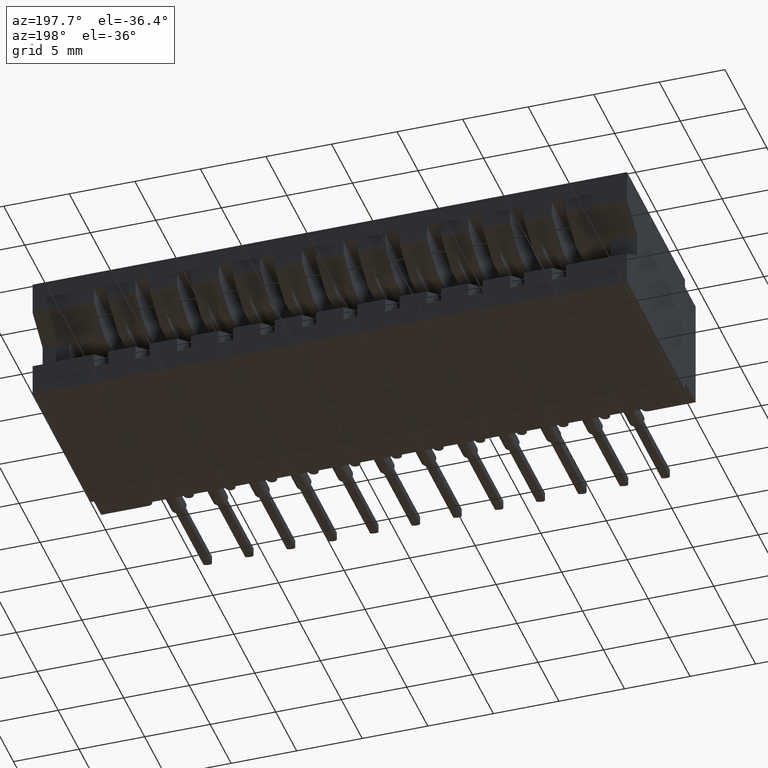
[diagram: clean part render]
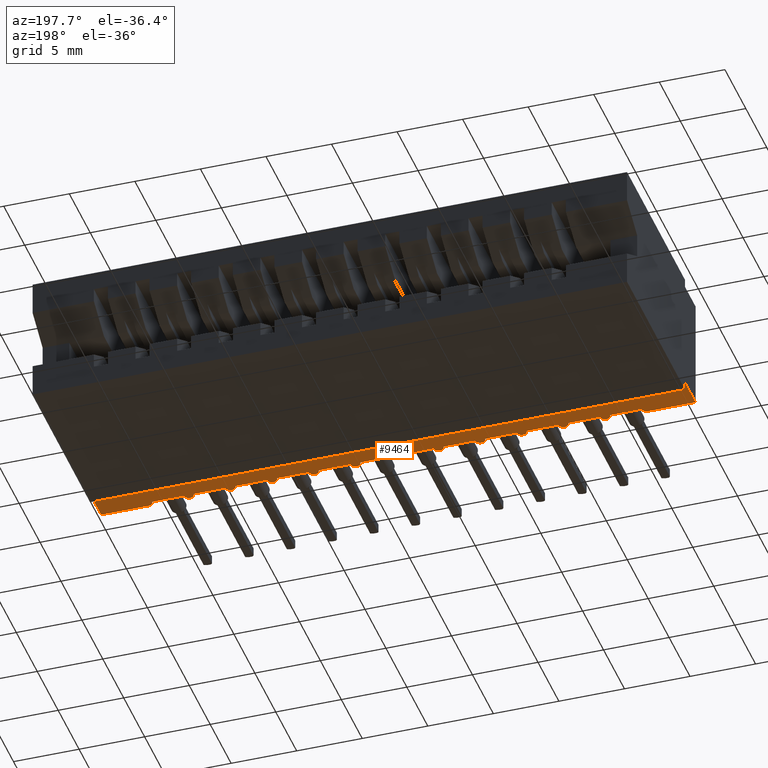
[diagram: same view with one face highlighted and labeled with its STEP entity id]
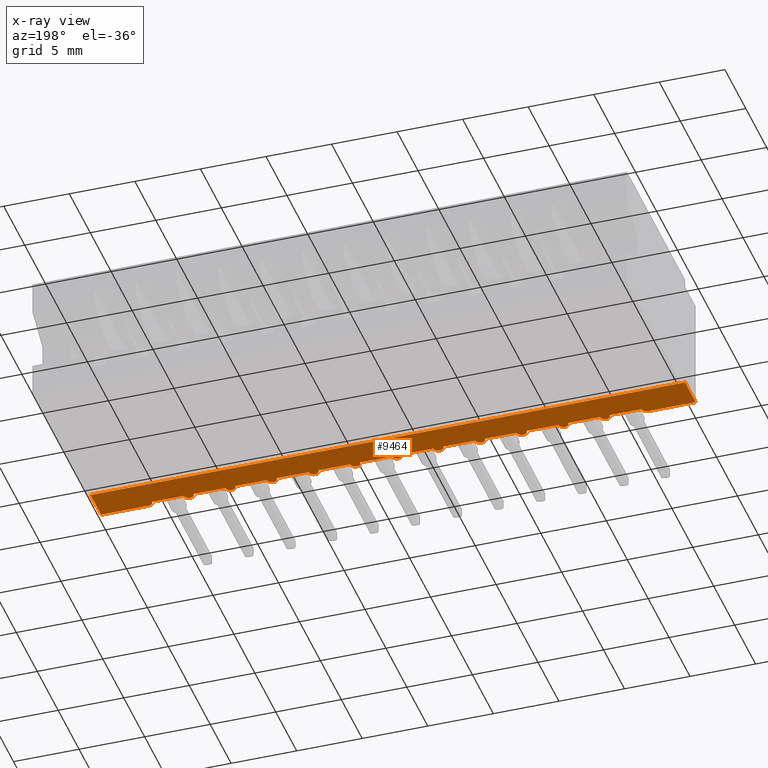
[diagram: x-ray of the same camera — body ghosted, the highlighted face saturated]
A machine part, auxiliary view. The second image highlights one B-rep face of the part: STEP entity #9464.
The next image is the same camera in x-ray: the body ghosted, the highlighted face saturated — about 0% of this face is hidden behind the body in this view.
In plain terms, the highlighted planar face has unit normal (0, 0, 1).
Its self-contained STEP definition (entity closure, byte-faithful):
#167 = VERTEX_POINT ( 'NONE', #1548 ) ;
#201 = DIRECTION ( 'NONE',  ( -1.000000000000000000, -0.0000000000000000000, -0.0000000000000000000 ) ) ;
#232 = CARTESIAN_POINT ( 'NONE',  ( 1.502499999999999503, 0.01499999999999997169, -0.3649999999999999911 ) ) ;
#248 = CIRCLE ( 'NONE', #3532, 0.01499999999999997689 ) ;
#254 = ORIENTED_EDGE ( 'NONE', *, *, #10666, .F. ) ;
#486 = CARTESIAN_POINT ( 'NONE',  ( 1.002499999999999725, 0.01499999999999997169, -0.3649999999999999911 ) ) ;
#838 = EDGE_CURVE ( 'NONE', #1313, #16099, #12861, .T. ) ;
#1171 = EDGE_CURVE ( 'NONE', #8004, #3190, #21203, .T. ) ;
#1172 = DIRECTION ( 'NONE',  ( 1.000000000000000000, 0.0000000000000000000, 0.0000000000000000000 ) ) ;
#1313 = VERTEX_POINT ( 'NONE', #19029 ) ;
#1448 = ORIENTED_EDGE ( 'NONE', *, *, #7934, .F. ) ;
#1461 = EDGE_CURVE ( 'NONE', #22333, #4548, #10975, .T. ) ;
#1517 = CARTESIAN_POINT ( 'NONE',  ( 1.642499999999999849, 0.0000000000000000000, -0.3649999999999999911 ) ) ;
#1548 = CARTESIAN_POINT ( 'NONE',  ( 1.282499999999999751, 0.01499999999999997169, -0.3649999999999999911 ) ) ;
#1556 = VERTEX_POINT ( 'NONE', #18441 ) ;
#1558 = CIRCLE ( 'NONE', #21457, 0.01500000000000001159 ) ;
#1715 = VECTOR ( 'NONE', #11283, 39.37007874015748143 ) ;
#1769 = CARTESIAN_POINT ( 'NONE',  ( 0.9074999999999996403, 0.01499999999999997169, -0.3649999999999999911 ) ) ;
#1913 = VERTEX_POINT ( 'NONE', #5616 ) ;
#1974 = EDGE_CURVE ( 'NONE', #2227, #4786, #1558, .T. ) ;
#2079 = CARTESIAN_POINT ( 'NONE',  ( 1.377499999999999725, 0.01499999999999997169, -0.3649999999999999911 ) ) ;
#2227 = VERTEX_POINT ( 'NONE', #11026 ) ;
#2457 = ORIENTED_EDGE ( 'NONE', *, *, #18584, .F. ) ;
#2646 = LINE ( 'NONE', #14542, #17947 ) ;
#2735 = VECTOR ( 'NONE', #4698, 39.37007874015748143 ) ;
#2812 = EDGE_CURVE ( 'NONE', #4548, #13672, #20598, .T. ) ;
#2905 = ORIENTED_EDGE ( 'NONE', *, *, #18357, .F. ) ;
#2957 = EDGE_CURVE ( 'NONE', #5072, #14920, #9848, .T. ) ;
#2980 = DIRECTION ( 'NONE',  ( 0.0000000000000000000, 0.0000000000000000000, 1.000000000000000000 ) ) ;
#3190 = VERTEX_POINT ( 'NONE', #13660 ) ;
#3250 = EDGE_CURVE ( 'NONE', #14920, #10785, #13872, .T. ) ;
#3532 = AXIS2_PLACEMENT_3D ( 'NONE', #10707, #8875, #5476 ) ;
#3596 = CARTESIAN_POINT ( 'NONE',  ( 0.5024999999999996136, 0.01499999999999997169, -0.3649999999999999911 ) ) ;
#3608 = DIRECTION ( 'NONE',  ( 0.0000000000000000000, 1.000000000000000000, 0.0000000000000000000 ) ) ;
#3719 = ORIENTED_EDGE ( 'NONE', *, *, #3966, .T. ) ;
#3788 = LINE ( 'NONE', #22376, #18688 ) ;
#3820 = AXIS2_PLACEMENT_3D ( 'NONE', #11507, #2980, #14882 ) ;
#3966 = EDGE_CURVE ( 'NONE', #1556, #14587, #7002, .T. ) ;
#4152 = ORIENTED_EDGE ( 'NONE', *, *, #5079, .F. ) ;
#4199 = CARTESIAN_POINT ( 'NONE',  ( 1.532499999999999529, 0.01499999999999997169, -0.3649999999999999911 ) ) ;
#4204 = AXIS2_PLACEMENT_3D ( 'NONE', #13315, #20226, #11048 ) ;
#4251 = CARTESIAN_POINT ( 'NONE',  ( 0.1424999999999997102, 0.0000000000000000000, -0.3649999999999999911 ) ) ;
#4426 = ORIENTED_EDGE ( 'NONE', *, *, #9413, .T. ) ;
#4531 = ORIENTED_EDGE ( 'NONE', *, *, #13456, .F. ) ;
#4548 = VERTEX_POINT ( 'NONE', #20701 ) ;
#4559 = VECTOR ( 'NONE', #12836, 39.37007874015748143 ) ;
#4599 = LINE ( 'NONE', #16720, #6090 ) ;
#4698 = DIRECTION ( 'NONE',  ( 1.000000000000000000, -0.0000000000000000000, -2.307304048702925122E-16 ) ) ;
#4786 = VERTEX_POINT ( 'NONE', #9700 ) ;
#5072 = VERTEX_POINT ( 'NONE', #486 ) ;
#5079 = EDGE_CURVE ( 'NONE', #167, #18687, #10371, .T. ) ;
#5138 = DIRECTION ( 'NONE',  ( 1.000000000000000000, -0.0000000000000000000, -2.307304048702925122E-16 ) ) ;
#5250 = CARTESIAN_POINT ( 'NONE',  ( 0.6274999999999996136, 0.01499999999999997169, -0.3649999999999999911 ) ) ;
#5290 = DIRECTION ( 'NONE',  ( 1.000000000000000000, -0.0000000000000000000, -2.307304048702925122E-16 ) ) ;
#5333 = VERTEX_POINT ( 'NONE', #13492 ) ;
#5382 = DIRECTION ( 'NONE',  ( 1.000000000000000000, -0.0000000000000000000, -2.307304048702925122E-16 ) ) ;
#5453 = CARTESIAN_POINT ( 'NONE',  ( 1.627499999999999503, 0.01499999999999997169, -0.3649999999999999911 ) ) ;
#5476 = DIRECTION ( 'NONE',  ( 1.000000000000000000, 0.0000000000000000000, 0.0000000000000000000 ) ) ;
#5616 = CARTESIAN_POINT ( 'NONE',  ( 1.157499999999999751, 0.01499999999999997169, -0.3649999999999999911 ) ) ;
#5637 = CARTESIAN_POINT ( 'NONE',  ( 0.7824999999999997513, 0.01499999999999997169, -0.3649999999999999911 ) ) ;
#5794 = VECTOR ( 'NONE', #21465, 39.37007874015748143 ) ;
#5814 = DIRECTION ( 'NONE',  ( 1.000000000000000000, 0.0000000000000000000, 0.0000000000000000000 ) ) ;
#5817 = CARTESIAN_POINT ( 'NONE',  ( 1.127499999999999725, 0.01499999999999997169, -0.3649999999999999911 ) ) ;
#5862 = AXIS2_PLACEMENT_3D ( 'NONE', #9025, #16266, #21038 ) ;
#5898 = ORIENTED_EDGE ( 'NONE', *, *, #15500, .F. ) ;
#5907 = CARTESIAN_POINT ( 'NONE',  ( 0.8089999999999996083, 0.01499999999999996302, -0.3649999999999999911 ) ) ;
#5991 = EDGE_CURVE ( 'NONE', #12050, #20633, #8133, .T. ) ;
#6090 = VECTOR ( 'NONE', #6516, 39.37007874015748143 ) ;
#6240 = LINE ( 'NONE', #13164, #21194 ) ;
#6271 = VECTOR ( 'NONE', #3608, 39.37007874015748143 ) ;
#6281 = DIRECTION ( 'NONE',  ( 1.000000000000000000, 0.0000000000000000000, 0.0000000000000000000 ) ) ;
#6337 = ORIENTED_EDGE ( 'NONE', *, *, #18434, .F. ) ;
#6432 = DIRECTION ( 'NONE',  ( 1.000000000000000000, -0.0000000000000000000, -2.307304048702925122E-16 ) ) ;
#6455 = VECTOR ( 'NONE', #5290, 39.37007874015748143 ) ;
#6516 = DIRECTION ( 'NONE',  ( 0.0000000000000000000, 1.000000000000000000, 0.0000000000000000000 ) ) ;
#6739 = CARTESIAN_POINT ( 'NONE',  ( 1.267499999999999627, 0.01499999999999997169, -0.3649999999999999911 ) ) ;
#6801 = EDGE_CURVE ( 'NONE', #22103, #13672, #6240, .T. ) ;
#6810 = CARTESIAN_POINT ( 'NONE',  ( 1.142499999999999627, 0.01499999999999997169, -0.3649999999999999911 ) ) ;
#7002 = LINE ( 'NONE', #12248, #18921 ) ;
#7034 = AXIS2_PLACEMENT_3D ( 'NONE', #16245, #11162, #5814 ) ;
#7044 = AXIS2_PLACEMENT_3D ( 'NONE', #16726, #17974, #19900 ) ;
#7378 = AXIS2_PLACEMENT_3D ( 'NONE', #16975, #10267, #20929 ) ;
#7602 = EDGE_CURVE ( 'NONE', #19725, #5333, #22308, .T. ) ;
#7617 = LINE ( 'NONE', #5907, #4559 ) ;
#7629 = EDGE_CURVE ( 'NONE', #19185, #12288, #2646, .T. ) ;
#7788 = EDGE_CURVE ( 'NONE', #16099, #19185, #16523, .T. ) ;
#7934 = EDGE_CURVE ( 'NONE', #1913, #15585, #3788, .T. ) ;
#8004 = VERTEX_POINT ( 'NONE', #5250 ) ;
#8133 = CIRCLE ( 'NONE', #7044, 0.01499999999999997689 ) ;
#8195 = CIRCLE ( 'NONE', #21566, 0.01499999999999997689 ) ;
#8651 = ORIENTED_EDGE ( 'NONE', *, *, #11926, .F. ) ;
#8711 = ORIENTED_EDGE ( 'NONE', *, *, #16924, .F. ) ;
#8875 = DIRECTION ( 'NONE',  ( 0.0000000000000000000, 0.0000000000000000000, 1.000000000000000000 ) ) ;
#9025 = CARTESIAN_POINT ( 'NONE',  ( 1.017499999999999627, 0.01499999999999997169, -0.3649999999999999911 ) ) ;
#9328 = CARTESIAN_POINT ( 'NONE',  ( 0.3774999999999996692, 0.01499999999999997169, -0.3649999999999999911 ) ) ;
#9343 = ORIENTED_EDGE ( 'NONE', *, *, #5991, .F. ) ;
#9413 = EDGE_CURVE ( 'NONE', #10137, #22333, #17541, .T. ) ;
#9454 = CARTESIAN_POINT ( 'NONE',  ( 0.2674999999999996825, 0.01499999999999997169, -0.3649999999999999911 ) ) ;
#9464 = ADVANCED_FACE ( 'NONE', ( #15217 ), #22122, .F. ) ;
#9586 = VECTOR ( 'NONE', #19681, 39.37007874015748143 ) ;
#9700 = CARTESIAN_POINT ( 'NONE',  ( 0.2824999999999996958, 0.01499999999999997169, -0.3649999999999999911 ) ) ;
#9848 = CIRCLE ( 'NONE', #5862, 0.01499999999999997689 ) ;
#10083 = DIRECTION ( 'NONE',  ( 1.000000000000000000, 0.0000000000000000000, 0.0000000000000000000 ) ) ;
#10137 = VERTEX_POINT ( 'NONE', #12464 ) ;
#10238 = DIRECTION ( 'NONE',  ( 1.000000000000000000, -0.0000000000000000000, -2.307304048702925122E-16 ) ) ;
#10267 = DIRECTION ( 'NONE',  ( 0.0000000000000000000, 0.0000000000000000000, 1.000000000000000000 ) ) ;
#10317 = VERTEX_POINT ( 'NONE', #12107 ) ;
#10371 = LINE ( 'NONE', #10833, #20042 ) ;
#10666 = EDGE_CURVE ( 'NONE', #19538, #20709, #8195, .T. ) ;
#10707 = CARTESIAN_POINT ( 'NONE',  ( 0.7674999999999996270, 0.01499999999999997169, -0.3649999999999999911 ) ) ;
#10785 = VERTEX_POINT ( 'NONE', #5817 ) ;
#10833 = CARTESIAN_POINT ( 'NONE',  ( 1.308999999999999941, 0.01499999999999996302, -0.3649999999999999911 ) ) ;
#10975 = LINE ( 'NONE', #12782, #9586 ) ;
#11014 = DIRECTION ( 'NONE',  ( -1.000000000000000000, -0.0000000000000000000, -0.0000000000000000000 ) ) ;
#11026 = CARTESIAN_POINT ( 'NONE',  ( 0.2524999999999996692, 0.01499999999999997169, -0.3649999999999999911 ) ) ;
#11048 = DIRECTION ( 'NONE',  ( 1.000000000000000000, 0.0000000000000000000, 0.0000000000000000000 ) ) ;
#11162 = DIRECTION ( 'NONE',  ( -0.0000000000000000000, -0.0000000000000000000, -1.000000000000000000 ) ) ;
#11283 = DIRECTION ( 'NONE',  ( 1.000000000000000000, -0.0000000000000000000, -2.307304048702925122E-16 ) ) ;
#11455 = AXIS2_PLACEMENT_3D ( 'NONE', #13040, #11792, #10083 ) ;
#11477 = AXIS2_PLACEMENT_3D ( 'NONE', #15344, #20238, #1172 ) ;
#11507 = CARTESIAN_POINT ( 'NONE',  ( 1.784999999999999920, 0.0000000000000000000, -0.3649999999999999911 ) ) ;
#11668 = DIRECTION ( 'NONE',  ( 1.000000000000000000, -0.0000000000000000000, -2.307304048702925122E-16 ) ) ;
#11792 = DIRECTION ( 'NONE',  ( 0.0000000000000000000, 0.0000000000000000000, 1.000000000000000000 ) ) ;
#11926 = EDGE_CURVE ( 'NONE', #10317, #19367, #248, .T. ) ;
#12042 = VECTOR ( 'NONE', #5138, 39.37007874015748143 ) ;
#12050 = VERTEX_POINT ( 'NONE', #9328 ) ;
#12107 = CARTESIAN_POINT ( 'NONE',  ( 0.7524999999999997247, 0.01499999999999997169, -0.3649999999999999911 ) ) ;
#12248 = CARTESIAN_POINT ( 'NONE',  ( 1.784999999999999920, 0.0000000000000000000, -0.3649999999999999911 ) ) ;
#12288 = VERTEX_POINT ( 'NONE', #5453 ) ;
#12464 = CARTESIAN_POINT ( 'NONE',  ( 0.1574999999999997236, 0.01499999999999997169, -0.3649999999999999911 ) ) ;
#12782 = CARTESIAN_POINT ( 'NONE',  ( 1.784999999999999920, 0.0000000000000000000, -0.3649999999999999911 ) ) ;
#12836 = DIRECTION ( 'NONE',  ( 1.000000000000000000, -0.0000000000000000000, -2.307304048702925122E-16 ) ) ;
#12861 = LINE ( 'NONE', #15003, #5794 ) ;
#12871 = AXIS2_PLACEMENT_3D ( 'NONE', #6739, #20568, #20671 ) ;
#13040 = CARTESIAN_POINT ( 'NONE',  ( 0.6424999999999996270, 0.01499999999999997169, -0.3649999999999999911 ) ) ;
#13164 = CARTESIAN_POINT ( 'NONE',  ( 1.784999999999999920, 0.1000000000000000056, -0.3649999999999999911 ) ) ;
#13207 = EDGE_CURVE ( 'NONE', #20709, #5072, #20700, .T. ) ;
#13315 = CARTESIAN_POINT ( 'NONE',  ( 0.5174999999999996270, 0.01499999999999997169, -0.3649999999999999911 ) ) ;
#13350 = CARTESIAN_POINT ( 'NONE',  ( 0.5589999999999996083, 0.01499999999999996302, -0.3649999999999999911 ) ) ;
#13389 = ORIENTED_EDGE ( 'NONE', *, *, #1171, .F. ) ;
#13456 = EDGE_CURVE ( 'NONE', #1556, #22103, #4599, .T. ) ;
#13492 = CARTESIAN_POINT ( 'NONE',  ( 0.5324999999999997513, 0.01499999999999997169, -0.3649999999999999911 ) ) ;
#13621 = EDGE_CURVE ( 'NONE', #4786, #12050, #15914, .T. ) ;
#13660 = CARTESIAN_POINT ( 'NONE',  ( 0.6574999999999997513, 0.01499999999999997169, -0.3649999999999999911 ) ) ;
#13672 = VERTEX_POINT ( 'NONE', #14317 ) ;
#13719 = DIRECTION ( 'NONE',  ( 0.0000000000000000000, 0.0000000000000000000, 1.000000000000000000 ) ) ;
#13770 = CARTESIAN_POINT ( 'NONE',  ( 1.058999999999999497, 0.01499999999999996302, -0.3649999999999999911 ) ) ;
#13860 = ORIENTED_EDGE ( 'NONE', *, *, #2957, .F. ) ;
#13872 = LINE ( 'NONE', #13770, #12042 ) ;
#13875 = EDGE_CURVE ( 'NONE', #10785, #1913, #17990, .T. ) ;
#13881 = DIRECTION ( 'NONE',  ( 0.0000000000000000000, 0.0000000000000000000, 1.000000000000000000 ) ) ;
#14118 = CARTESIAN_POINT ( 'NONE',  ( 0.1839999999999996083, 0.01499999999999996302, -0.3649999999999999911 ) ) ;
#14120 = CARTESIAN_POINT ( 'NONE',  ( 0.9339999999999994973, 0.01499999999999996302, -0.3649999999999999911 ) ) ;
#14317 = CARTESIAN_POINT ( 'NONE',  ( 0.0000000000000000000, 0.1000000000000000056, -0.3649999999999999911 ) ) ;
#14542 = CARTESIAN_POINT ( 'NONE',  ( 1.558999999999999719, 0.01499999999999996302, -0.3649999999999999911 ) ) ;
#14587 = VERTEX_POINT ( 'NONE', #1517 ) ;
#14677 = CIRCLE ( 'NONE', #12871, 0.01499999999999997689 ) ;
#14817 = CARTESIAN_POINT ( 'NONE',  ( 1.252499999999999503, 0.01499999999999997169, -0.3649999999999999911 ) ) ;
#14882 = DIRECTION ( 'NONE',  ( 1.000000000000000000, 0.0000000000000000000, -0.0000000000000000000 ) ) ;
#14905 = ORIENTED_EDGE ( 'NONE', *, *, #18753, .F. ) ;
#14918 = LINE ( 'NONE', #13350, #17333 ) ;
#14920 = VERTEX_POINT ( 'NONE', #17722 ) ;
#14998 = ORIENTED_EDGE ( 'NONE', *, *, #838, .F. ) ;
#15003 = CARTESIAN_POINT ( 'NONE',  ( 1.433999999999999719, 0.01499999999999996302, -0.3649999999999999911 ) ) ;
#15217 = FACE_OUTER_BOUND ( 'NONE', #21307, .T. ) ;
#15226 = ORIENTED_EDGE ( 'NONE', *, *, #3250, .F. ) ;
#15344 = CARTESIAN_POINT ( 'NONE',  ( 1.517499999999999849, 0.01499999999999997169, -0.3649999999999999911 ) ) ;
#15500 = EDGE_CURVE ( 'NONE', #5333, #8004, #14918, .T. ) ;
#15502 = CARTESIAN_POINT ( 'NONE',  ( 0.0000000000000000000, 0.0000000000000000000, -0.3649999999999999911 ) ) ;
#15538 = DIRECTION ( 'NONE',  ( 1.000000000000000000, 0.0000000000000000000, 0.0000000000000000000 ) ) ;
#15585 = VERTEX_POINT ( 'NONE', #14817 ) ;
#15589 = DIRECTION ( 'NONE',  ( 1.000000000000000000, 0.0000000000000000000, 0.0000000000000000000 ) ) ;
#15914 = LINE ( 'NONE', #19305, #18763 ) ;
#16099 = VERTEX_POINT ( 'NONE', #232 ) ;
#16245 = CARTESIAN_POINT ( 'NONE',  ( 0.1424999999999997102, 0.01499999999999997169, -0.3649999999999999911 ) ) ;
#16266 = DIRECTION ( 'NONE',  ( 0.0000000000000000000, 0.0000000000000000000, 1.000000000000000000 ) ) ;
#16366 = DIRECTION ( 'NONE',  ( 0.0000000000000000000, 0.0000000000000000000, 1.000000000000000000 ) ) ;
#16384 = CARTESIAN_POINT ( 'NONE',  ( 0.8774999999999997247, 0.01499999999999997169, -0.3649999999999999911 ) ) ;
#16503 = ORIENTED_EDGE ( 'NONE', *, *, #7788, .F. ) ;
#16523 = CIRCLE ( 'NONE', #11477, 0.01499999999999997689 ) ;
#16564 = ORIENTED_EDGE ( 'NONE', *, *, #13875, .F. ) ;
#16720 = CARTESIAN_POINT ( 'NONE',  ( 1.784999999999999920, 0.0000000000000000000, -0.3649999999999999911 ) ) ;
#16726 = CARTESIAN_POINT ( 'NONE',  ( 0.3924999999999996825, 0.01499999999999997169, -0.3649999999999999911 ) ) ;
#16807 = CIRCLE ( 'NONE', #7378, 0.01499999999999997689 ) ;
#16826 = DIRECTION ( 'NONE',  ( 1.000000000000000000, 0.0000000000000000000, 0.0000000000000000000 ) ) ;
#16871 = ORIENTED_EDGE ( 'NONE', *, *, #6801, .F. ) ;
#16924 = EDGE_CURVE ( 'NONE', #12288, #14587, #16807, .T. ) ;
#16975 = CARTESIAN_POINT ( 'NONE',  ( 1.642499999999999849, 0.01499999999999997169, -0.3649999999999999911 ) ) ;
#17333 = VECTOR ( 'NONE', #6432, 39.37007874015748143 ) ;
#17541 = CIRCLE ( 'NONE', #7034, 0.01500000000000001159 ) ;
#17577 = VECTOR ( 'NONE', #11668, 39.37007874015748143 ) ;
#17664 = ORIENTED_EDGE ( 'NONE', *, *, #7602, .F. ) ;
#17722 = CARTESIAN_POINT ( 'NONE',  ( 1.032499999999999751, 0.01499999999999997169, -0.3649999999999999911 ) ) ;
#17947 = VECTOR ( 'NONE', #21456, 39.37007874015748143 ) ;
#17974 = DIRECTION ( 'NONE',  ( 0.0000000000000000000, 0.0000000000000000000, 1.000000000000000000 ) ) ;
#17990 = CIRCLE ( 'NONE', #19085, 0.01499999999999997689 ) ;
#18087 = CARTESIAN_POINT ( 'NONE',  ( 0.4074999999999996958, 0.01499999999999997169, -0.3649999999999999911 ) ) ;
#18172 = CARTESIAN_POINT ( 'NONE',  ( 0.6839999999999996083, 0.01499999999999996302, -0.3649999999999999911 ) ) ;
#18357 = EDGE_CURVE ( 'NONE', #10137, #2227, #19771, .T. ) ;
#18434 = EDGE_CURVE ( 'NONE', #18687, #1313, #18653, .T. ) ;
#18441 = CARTESIAN_POINT ( 'NONE',  ( 1.784999999999999920, 0.0000000000000000000, -0.3649999999999999911 ) ) ;
#18584 = EDGE_CURVE ( 'NONE', #15585, #167, #14677, .T. ) ;
#18653 = CIRCLE ( 'NONE', #19374, 0.01499999999999997689 ) ;
#18687 = VERTEX_POINT ( 'NONE', #2079 ) ;
#18688 = VECTOR ( 'NONE', #10238, 39.37007874015748143 ) ;
#18724 = ORIENTED_EDGE ( 'NONE', *, *, #13207, .F. ) ;
#18753 = EDGE_CURVE ( 'NONE', #19367, #19538, #7617, .T. ) ;
#18763 = VECTOR ( 'NONE', #18970, 39.37007874015748143 ) ;
#18921 = VECTOR ( 'NONE', #201, 39.37007874015748143 ) ;
#18970 = DIRECTION ( 'NONE',  ( 1.000000000000000000, -0.0000000000000000000, -2.307304048702925122E-16 ) ) ;
#19029 = CARTESIAN_POINT ( 'NONE',  ( 1.407499999999999751, 0.01499999999999997169, -0.3649999999999999911 ) ) ;
#19085 = AXIS2_PLACEMENT_3D ( 'NONE', #6810, #13719, #15538 ) ;
#19185 = VERTEX_POINT ( 'NONE', #4199 ) ;
#19305 = CARTESIAN_POINT ( 'NONE',  ( 0.3089999999999996083, 0.01499999999999996302, -0.3649999999999999911 ) ) ;
#19339 = ORIENTED_EDGE ( 'NONE', *, *, #22210, .F. ) ;
#19367 = VERTEX_POINT ( 'NONE', #5637 ) ;
#19374 = AXIS2_PLACEMENT_3D ( 'NONE', #22041, #21921, #6281 ) ;
#19443 = CARTESIAN_POINT ( 'NONE',  ( 1.784999999999999920, 0.1000000000000000056, -0.3649999999999999911 ) ) ;
#19538 = VERTEX_POINT ( 'NONE', #16384 ) ;
#19607 = ORIENTED_EDGE ( 'NONE', *, *, #1974, .F. ) ;
#19681 = DIRECTION ( 'NONE',  ( -1.000000000000000000, -0.0000000000000000000, -0.0000000000000000000 ) ) ;
#19725 = VERTEX_POINT ( 'NONE', #3596 ) ;
#19771 = LINE ( 'NONE', #14118, #2735 ) ;
#19900 = DIRECTION ( 'NONE',  ( 1.000000000000000000, 0.0000000000000000000, 0.0000000000000000000 ) ) ;
#19933 = CARTESIAN_POINT ( 'NONE',  ( 0.4339999999999996083, 0.01499999999999996302, -0.3649999999999999911 ) ) ;
#20042 = VECTOR ( 'NONE', #5382, 39.37007874015748143 ) ;
#20177 = EDGE_CURVE ( 'NONE', #20633, #19725, #21744, .T. ) ;
#20226 = DIRECTION ( 'NONE',  ( 0.0000000000000000000, 0.0000000000000000000, 1.000000000000000000 ) ) ;
#20231 = LINE ( 'NONE', #18172, #1715 ) ;
#20238 = DIRECTION ( 'NONE',  ( 0.0000000000000000000, 0.0000000000000000000, 1.000000000000000000 ) ) ;
#20281 = ORIENTED_EDGE ( 'NONE', *, *, #2812, .T. ) ;
#20568 = DIRECTION ( 'NONE',  ( 0.0000000000000000000, 0.0000000000000000000, 1.000000000000000000 ) ) ;
#20598 = LINE ( 'NONE', #15502, #6271 ) ;
#20633 = VERTEX_POINT ( 'NONE', #18087 ) ;
#20639 = ORIENTED_EDGE ( 'NONE', *, *, #1461, .T. ) ;
#20671 = DIRECTION ( 'NONE',  ( 1.000000000000000000, 0.0000000000000000000, 0.0000000000000000000 ) ) ;
#20700 = LINE ( 'NONE', #14120, #6455 ) ;
#20701 = CARTESIAN_POINT ( 'NONE',  ( 0.0000000000000000000, 0.0000000000000000000, -0.3649999999999999911 ) ) ;
#20709 = VERTEX_POINT ( 'NONE', #1769 ) ;
#20885 = ORIENTED_EDGE ( 'NONE', *, *, #20177, .F. ) ;
#20929 = DIRECTION ( 'NONE',  ( 1.000000000000000000, 0.0000000000000000000, 0.0000000000000000000 ) ) ;
#21038 = DIRECTION ( 'NONE',  ( 1.000000000000000000, 0.0000000000000000000, 0.0000000000000000000 ) ) ;
#21056 = ORIENTED_EDGE ( 'NONE', *, *, #13621, .F. ) ;
#21194 = VECTOR ( 'NONE', #11014, 39.37007874015748143 ) ;
#21203 = CIRCLE ( 'NONE', #11455, 0.01499999999999997689 ) ;
#21307 = EDGE_LOOP ( 'NONE', ( #22300, #16503, #14998, #6337, #4152, #2457, #1448, #16564, #15226, #13860, #18724, #254, #14905, #8651, #19339, #13389, #5898, #17664, #20885, #9343, #21056, #19607, #2905, #4426, #20639, #20281, #16871, #4531, #3719, #8711 ) ) ;
#21456 = DIRECTION ( 'NONE',  ( 1.000000000000000000, -0.0000000000000000000, -2.307304048702925122E-16 ) ) ;
#21457 = AXIS2_PLACEMENT_3D ( 'NONE', #9454, #16366, #16826 ) ;
#21465 = DIRECTION ( 'NONE',  ( 1.000000000000000000, -0.0000000000000000000, -2.307304048702925122E-16 ) ) ;
#21566 = AXIS2_PLACEMENT_3D ( 'NONE', #22262, #13881, #15589 ) ;
#21744 = LINE ( 'NONE', #19933, #17577 ) ;
#21921 = DIRECTION ( 'NONE',  ( 0.0000000000000000000, 0.0000000000000000000, 1.000000000000000000 ) ) ;
#22041 = CARTESIAN_POINT ( 'NONE',  ( 1.392499999999999627, 0.01499999999999997169, -0.3649999999999999911 ) ) ;
#22103 = VERTEX_POINT ( 'NONE', #19443 ) ;
#22122 = PLANE ( 'NONE',  #3820 ) ;
#22210 = EDGE_CURVE ( 'NONE', #3190, #10317, #20231, .T. ) ;
#22262 = CARTESIAN_POINT ( 'NONE',  ( 0.8924999999999997380, 0.01499999999999997169, -0.3649999999999999911 ) ) ;
#22300 = ORIENTED_EDGE ( 'NONE', *, *, #7629, .F. ) ;
#22308 = CIRCLE ( 'NONE', #4204, 0.01499999999999997689 ) ;
#22333 = VERTEX_POINT ( 'NONE', #4251 ) ;
#22376 = CARTESIAN_POINT ( 'NONE',  ( 1.183999999999999497, 0.01499999999999996302, -0.3649999999999999911 ) ) ;